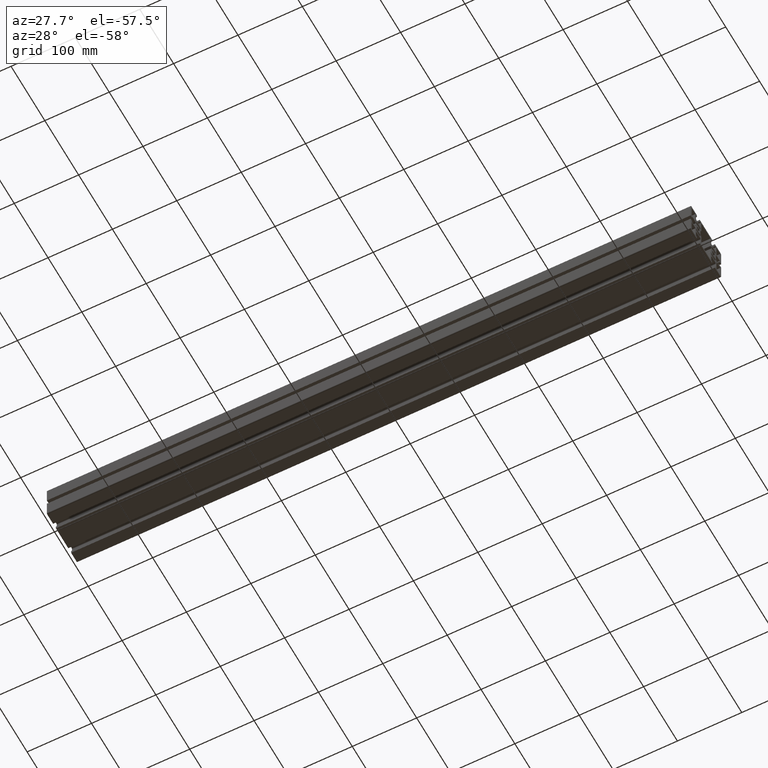
[diagram: clean part render]
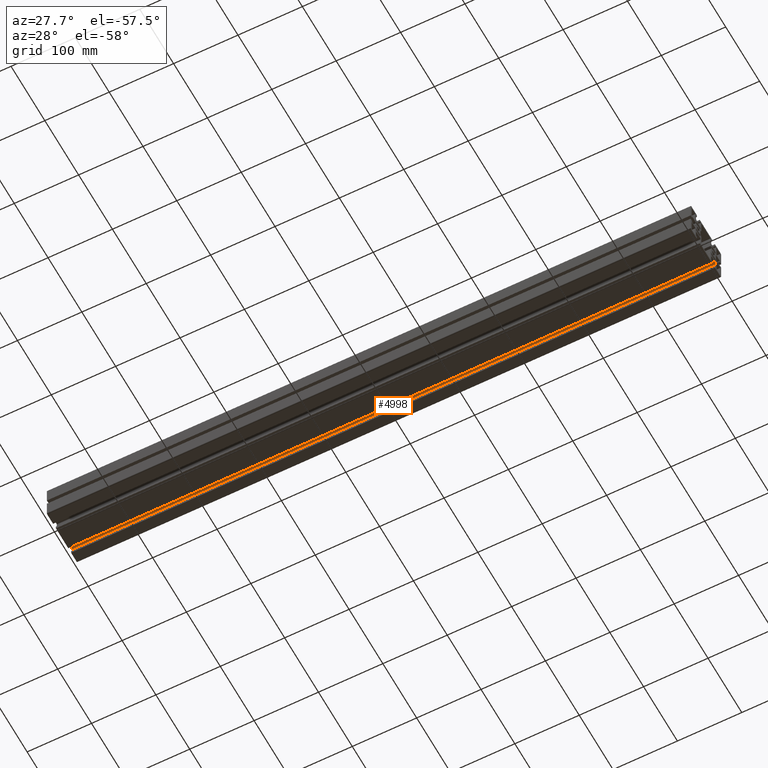
[diagram: same view with one face highlighted and labeled with its STEP entity id]
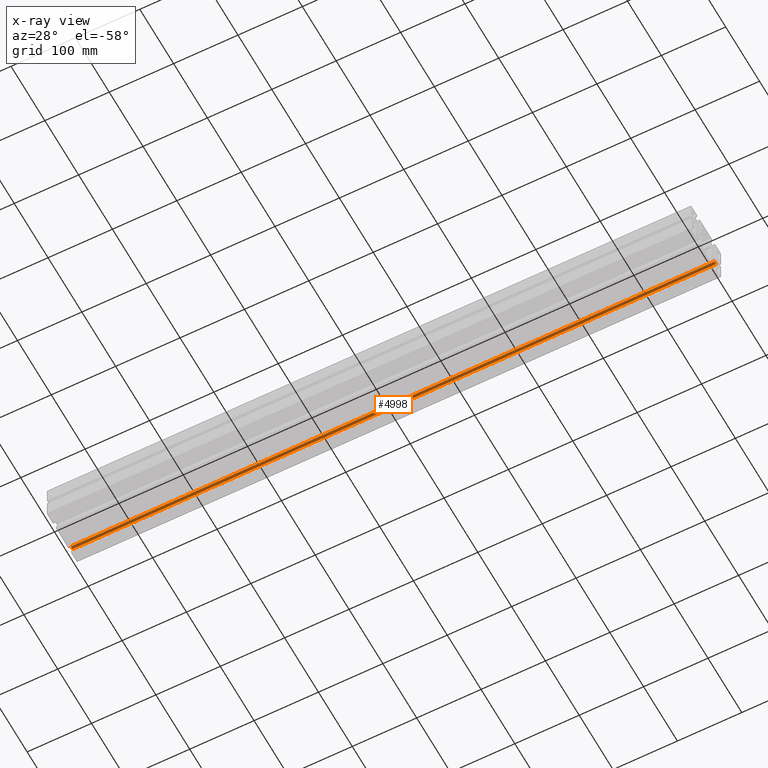
[diagram: x-ray of the same camera — body ghosted, the highlighted face saturated]
A machine part, auxiliary view. The second image highlights one B-rep face of the part: STEP entity #4998.
The next image is the same camera in x-ray: the body ghosted, the highlighted face saturated — about 0% of this face is hidden behind the body in this view.
In plain terms, the highlighted cylindrical surface (edge-blend (fillet) strip) has radius 3.2 mm, axis along (1, 0, 0).
Its self-contained STEP definition (entity closure, byte-faithful):
#163=CIRCLE('',#5392,3.19999999999959);
#164=CIRCLE('',#5393,3.19999999999959);
#236=CYLINDRICAL_SURFACE('',#5391,3.19999999999959);
#470=FACE_OUTER_BOUND('',#714,.T.);
#714=EDGE_LOOP('',(#4057,#4058,#4059,#4060));
#1312=LINE('',#8145,#1902);
#1313=LINE('',#8151,#1903);
#1902=VECTOR('',#6689,10.);
#1903=VECTOR('',#6696,10.);
#2389=VERTEX_POINT('',#8141);
#2390=VERTEX_POINT('',#8143);
#2391=VERTEX_POINT('',#8147);
#2392=VERTEX_POINT('',#8149);
#3102=EDGE_CURVE('',#2389,#2390,#1312,.T.);
#3103=EDGE_CURVE('',#2389,#2391,#163,.T.);
#3104=EDGE_CURVE('',#2392,#2390,#164,.T.);
#3105=EDGE_CURVE('',#2391,#2392,#1313,.T.);
#4057=ORIENTED_EDGE('',*,*,#3103,.F.);
#4058=ORIENTED_EDGE('',*,*,#3102,.T.);
#4059=ORIENTED_EDGE('',*,*,#3104,.F.);
#4060=ORIENTED_EDGE('',*,*,#3105,.F.);
#4998=ADVANCED_FACE('',(#470),#236,.F.);
#5391=AXIS2_PLACEMENT_3D('',#8146,#6690,#6691);
#5392=AXIS2_PLACEMENT_3D('',#8148,#6692,#6693);
#5393=AXIS2_PLACEMENT_3D('',#8150,#6694,#6695);
#6689=DIRECTION('',(1.,0.,0.));
#6690=DIRECTION('center_axis',(1.,0.,0.));
#6691=DIRECTION('ref_axis',(0.,1.,-6.93889390390813E-14));
#6692=DIRECTION('center_axis',(1.,0.,0.));
#6693=DIRECTION('ref_axis',(0.,1.,-6.93889390390813E-14));
#6694=DIRECTION('center_axis',(-1.,0.,0.));
#6695=DIRECTION('ref_axis',(0.,1.,-6.93889390390813E-14));
#6696=DIRECTION('',(1.,0.,0.));
#8141=CARTESIAN_POINT('',(0.,51.9000499999983,-17.8999999999999));
#8143=CARTESIAN_POINT('',(1000.,51.9000499999983,-17.8999999999999));
#8145=CARTESIAN_POINT('',(0.,51.9000499999983,-17.8999999999999));
#8146=CARTESIAN_POINT('Origin',(0.,48.7000499999987,-17.8999999999997));
#8147=CARTESIAN_POINT('',(0.,48.7000499999979,-14.7000000000001));
#8148=CARTESIAN_POINT('Origin',(0.,48.7000499999987,-17.8999999999997));
#8149=CARTESIAN_POINT('',(1000.,48.7000499999979,-14.7000000000001));
#8150=CARTESIAN_POINT('Origin',(1000.,48.7000499999987,-17.8999999999997));
#8151=CARTESIAN_POINT('',(0.,48.7000499999979,-14.7000000000001));